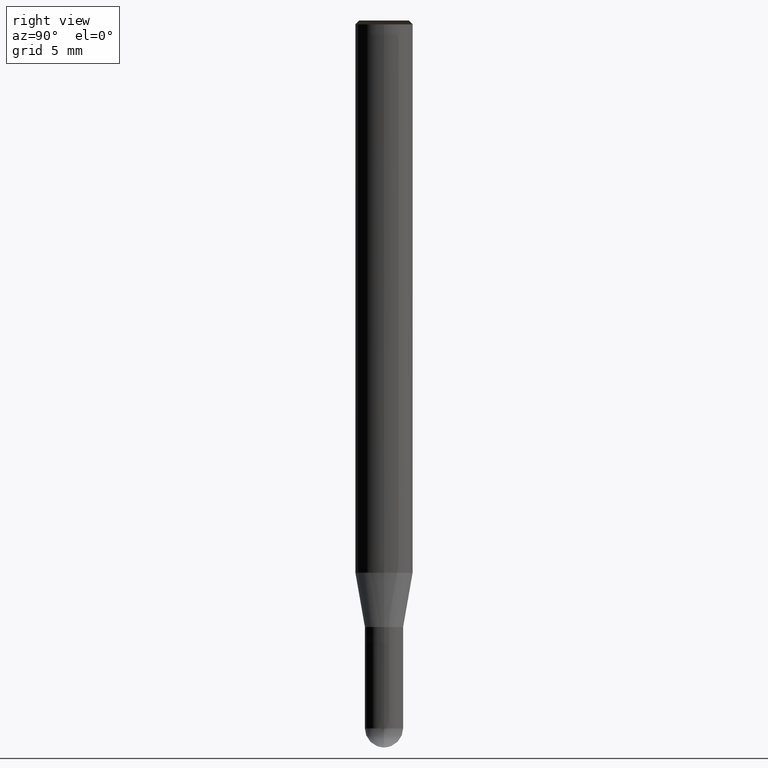
[diagram: clean part render]
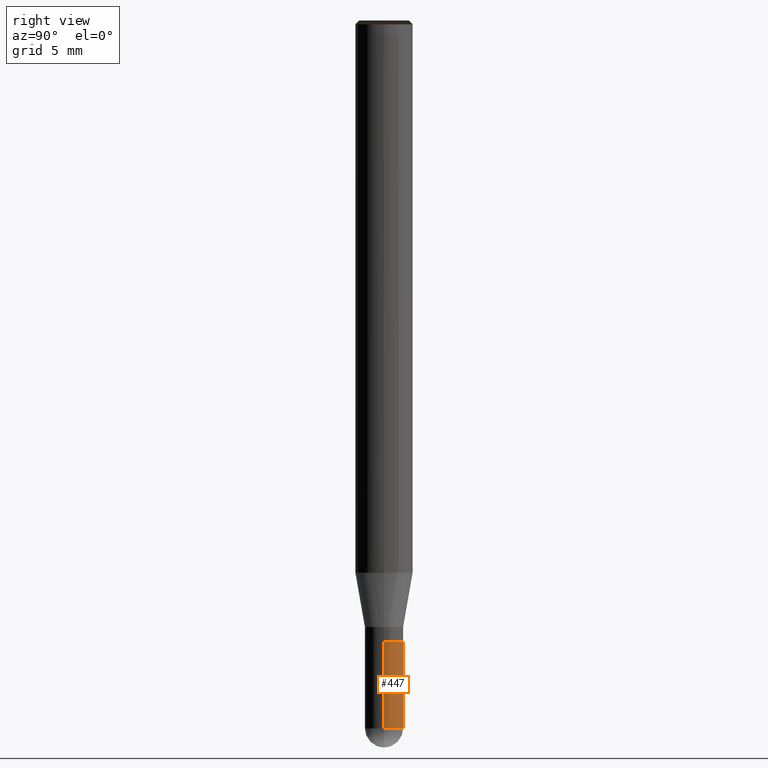
[diagram: same view with one face highlighted and labeled with its STEP entity id]
A machine part, right view. The second image highlights one B-rep face of the part: STEP entity #447.
In plain terms, the highlighted face is a freeform B-spline surface patch.
Its self-contained STEP definition (entity closure, byte-faithful):
#346=CARTESIAN_POINT('',(1.0,0.0,-8.3));
#347=CARTESIAN_POINT('',(1.0,1.0,-8.3));
#348=CARTESIAN_POINT('',(0.0,1.0,-8.3));
#349=CARTESIAN_POINT('',(-1.0,1.0,-8.3));
#350=CARTESIAN_POINT('',(-1.0,0.0,-8.3));
#351=CARTESIAN_POINT('',(1.0,0.0,-3.7875));
#352=CARTESIAN_POINT('',(1.0,1.0,-3.7875));
#353=CARTESIAN_POINT('',(0.0,1.0,-3.7875));
#354=CARTESIAN_POINT('',(-1.0,1.0,-3.7875));
#355=CARTESIAN_POINT('',(-1.0,0.0,-3.7875));
#428=(
BOUNDED_SURFACE()
B_SPLINE_SURFACE(1,2,(
(#346,#347,#348,#349,#350),
(#351,#352,#353,#354,#355)
), .UNSPECIFIED.,.F.,.F.,.F.)
B_SPLINE_SURFACE_WITH_KNOTS((2,2),(3,2,3),(
0.0,1.0),(
0.0,0.5,1.0), .UNSPECIFIED.)
GEOMETRIC_REPRESENTATION_ITEM()
RATIONAL_B_SPLINE_SURFACE(((1.0,0.707106781187,1.0,0.707106781187,1.0),
(1.0,0.707106781187,1.0,0.707106781187,1.0)
))
REPRESENTATION_ITEM('')
SURFACE()
);
#429=(
BOUNDED_CURVE()
B_SPLINE_CURVE(2,(#350,#349,#348,#347,#346),.UNSPECIFIED.,.F.,.F.)
B_SPLINE_CURVE_WITH_KNOTS((3,2,3),
(0.0,0.5,1.0),.UNSPECIFIED.)
CURVE()
GEOMETRIC_REPRESENTATION_ITEM()
RATIONAL_B_SPLINE_CURVE((1.0,0.707106781187,1.0,0.707106781187,1.0))
REPRESENTATION_ITEM('')
);
#430=(
BOUNDED_CURVE()
B_SPLINE_CURVE(1,(#346,#351),.UNSPECIFIED.,.F.,.F.)
B_SPLINE_CURVE_WITH_KNOTS((2,2),
(0.0,1.0),.UNSPECIFIED.)
CURVE()
GEOMETRIC_REPRESENTATION_ITEM()
RATIONAL_B_SPLINE_CURVE((1.0,1.0))
REPRESENTATION_ITEM('')
);
#431=(
BOUNDED_CURVE()
B_SPLINE_CURVE(2,(#351,#352,#353,#354,#355),.UNSPECIFIED.,.F.,.F.)
B_SPLINE_CURVE_WITH_KNOTS((3,2,3),
(0.0,0.5,1.0),.UNSPECIFIED.)
CURVE()
GEOMETRIC_REPRESENTATION_ITEM()
RATIONAL_B_SPLINE_CURVE((1.0,0.707106781187,1.0,0.707106781187,1.0))
REPRESENTATION_ITEM('')
);
#432=(
BOUNDED_CURVE()
B_SPLINE_CURVE(1,(#355,#350),.UNSPECIFIED.,.F.,.F.)
B_SPLINE_CURVE_WITH_KNOTS((2,2),
(0.0,1.0),.UNSPECIFIED.)
CURVE()
GEOMETRIC_REPRESENTATION_ITEM()
RATIONAL_B_SPLINE_CURVE((1.0,1.0))
REPRESENTATION_ITEM('')
);
#433=VERTEX_POINT('',#346);
#434=VERTEX_POINT('',#350);
#435=VERTEX_POINT('',#351);
#436=VERTEX_POINT('',#355);
#437=EDGE_CURVE('',#434,#433,#429,.T.);
#438=EDGE_CURVE('',#433,#435,#430,.T.);
#439=EDGE_CURVE('',#435,#436,#431,.T.);
#440=EDGE_CURVE('',#436,#434,#432,.T.);
#441=ORIENTED_EDGE('',*,*,#437,.T.);
#442=ORIENTED_EDGE('',*,*,#438,.T.);
#443=ORIENTED_EDGE('',*,*,#439,.T.);
#444=ORIENTED_EDGE('',*,*,#440,.T.);
#445=EDGE_LOOP('',(#441,#442,#443,#444));
#446=FACE_OUTER_BOUND('',#445,.T.);
#447=ADVANCED_FACE('',(#446),#428,.T.);